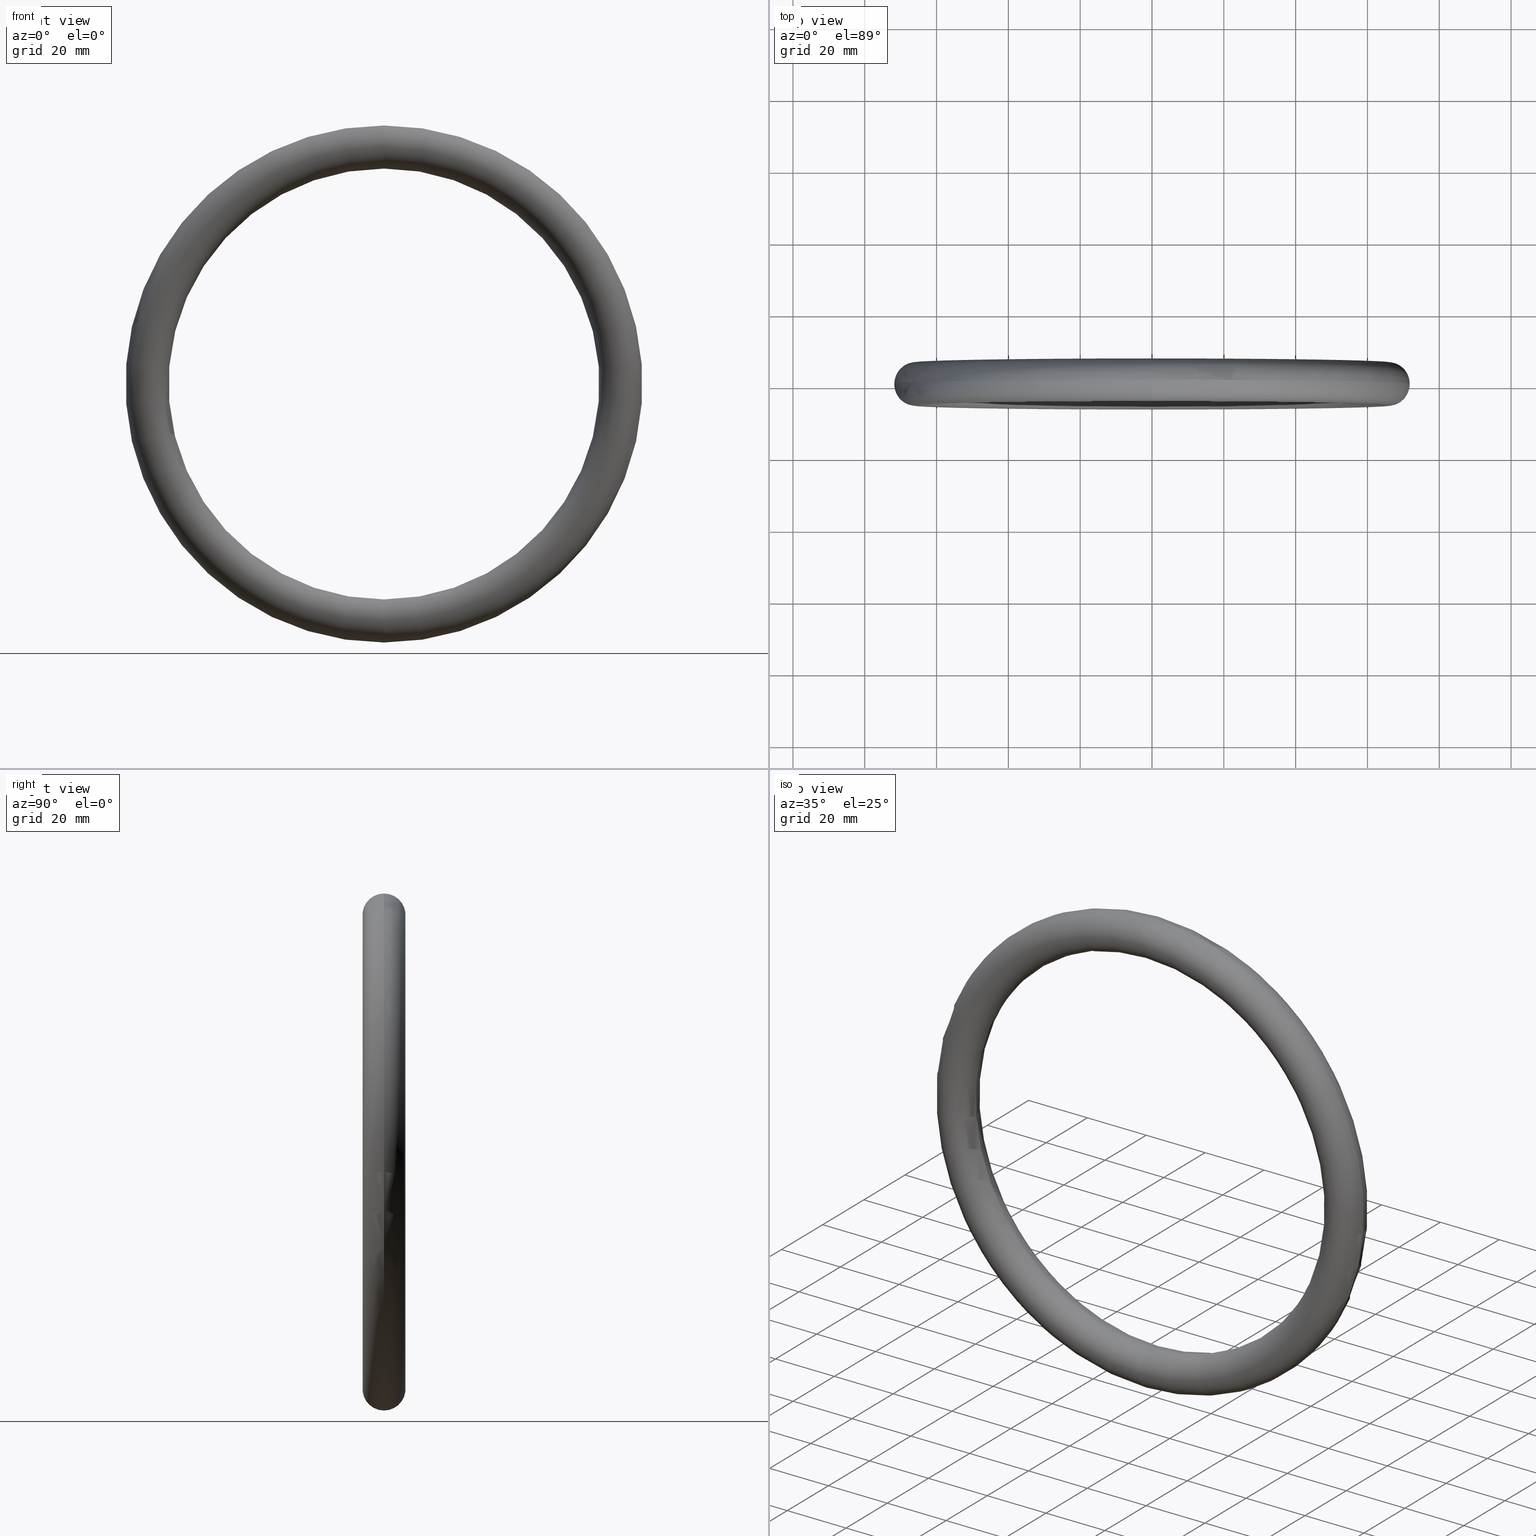
[diagram: canonical four-view strip — front | top / right | iso, engineering-drawing reading convention]
A machine part, canonical four-view strip (front | top / right | iso — engineering-drawing reading convention). The complete STEP part file that produces these views, byte-faithful:
ISO-10303-21;
HEADER;
FILE_DESCRIPTION (( 'STEP AP203' ),
    '1' );
FILE_NAME ('50382-240.step',
    '2021-04-26T12:00:21',
    ( '' ),
    ( '' ),
    'SwSTEP 2.0',
    'SolidWorks 2018',
    '' );
FILE_SCHEMA (( 'CONFIG_CONTROL_DESIGN' ));
ENDSEC;

DATA;
#1 = DATE_AND_TIME ( #209, #52 ) ;
#2 = ORIENTED_EDGE ( 'NONE', *, *, #136, .T. ) ;
#3 = CC_DESIGN_PERSON_AND_ORGANIZATION_ASSIGNMENT ( #243, #16, ( #44 ) ) ;
#4 = EDGE_CURVE ( 'NONE', #25, #43, #204, .T. ) ;
#5 = DIRECTION ( 'NONE',  ( 0.000000000000000000, 0.000000000000000000, 1.000000000000000000 ) ) ;
#6 = CLOSED_SHELL ( 'NONE', ( #105, #60, #179, #159 ) ) ;
#7 = PERSON_AND_ORGANIZATION_ROLE ( 'creator' ) ;
#8 = APPROVAL_ROLE ( '' ) ;
#9 = PERSON_AND_ORGANIZATION_ROLE ( 'creator' ) ;
#10 = PRODUCT_DEFINITION ( 'UNKNOWN', '', #28, #257 ) ;
#11 = APPROVAL_DATE_TIME ( #196, #228 ) ;
#12 = CIRCLE ( 'NONE', #49, 59.99999999999998579 ) ;
#13 = APPROVAL_ROLE ( '' ) ;
#14 = CARTESIAN_POINT ( 'NONE',  ( 0.000000000000000000, 0.000000000000000000, 0.000000000000000000 ) ) ;
#15 = AXIS2_PLACEMENT_3D ( 'NONE', #102, #131, #232 ) ;
#16 = PERSON_AND_ORGANIZATION_ROLE ( 'creator' ) ;
#17 = DATE_TIME_ROLE ( 'classification_date' ) ;
#18 = LOCAL_TIME ( 14, 0, 21.00000000000000000, #91 ) ;
#19 = APPLICATION_PROTOCOL_DEFINITION ( 'international standard', 'config_control_design', 1994, #81 ) ;
#20 = PRODUCT_RELATED_PRODUCT_CATEGORY ( 'detail', '', ( #101 ) ) ;
#21 = ORIENTED_EDGE ( 'NONE', *, *, #90, .T. ) ;
#22 = CALENDAR_DATE ( 2021, 26, 4 ) ;
#23 = SHAPE_DEFINITION_REPRESENTATION ( #184, #231 ) ;
#24 = MANIFOLD_SOLID_BREP ( 'Austragung1', #6 ) ;
#25 = VERTEX_POINT ( 'NONE', #79 ) ;
#26 = LOCAL_TIME ( 14, 0, 21.00000000000000000, #126 ) ;
#27 = CALENDAR_DATE ( 2021, 26, 4 ) ;
#28 = PRODUCT_DEFINITION_FORMATION_WITH_SPECIFIED_SOURCE ( 'ANY', '', #101, .NOT_KNOWN. ) ;
#29 = DIRECTION ( 'NONE',  ( 0.000000000000000000, 0.000000000000000000, -1.000000000000000000 ) ) ;
#30 = AXIS2_PLACEMENT_3D ( 'NONE', #233, #185, #45 ) ;
#31 = DIRECTION ( 'NONE',  ( 1.000000000000000000, 0.000000000000000000, 0.000000000000000000 ) ) ;
#32 = APPLICATION_CONTEXT ( 'configuration controlled 3d designs of mechanical parts and assemblies' ) ;
#33 = AXIS2_PLACEMENT_3D ( 'NONE', #242, #164, #29 ) ;
#34 = COORDINATED_UNIVERSAL_TIME_OFFSET ( 1, 0, .AHEAD. ) ;
#35 = EDGE_CURVE ( 'NONE', #142, #223, #210, .T. ) ;
#36 = DIRECTION ( 'NONE',  ( -1.224646799147351975E-16, 0.000000000000000000, -1.000000000000000000 ) ) ;
#37 = CC_DESIGN_PERSON_AND_ORGANIZATION_ASSIGNMENT ( #69, #266, ( #152 ) ) ;
#38 = AXIS2_PLACEMENT_3D ( 'NONE', #130, #96, #80 ) ;
#39 = LOCAL_TIME ( 14, 0, 21.00000000000000000, #191 ) ;
#40 = COORDINATED_UNIVERSAL_TIME_OFFSET ( 1, 0, .AHEAD. ) ;
#41 = CC_DESIGN_DATE_AND_TIME_ASSIGNMENT ( #88, #250, ( #152 ) ) ;
#42 = AXIS2_PLACEMENT_3D ( 'NONE', #53, #247, #121 ) ;
#43 = VERTEX_POINT ( 'NONE', #100 ) ;
#44 = PRODUCT_DEFINITION_FORMATION_WITH_SPECIFIED_SOURCE ( 'ANY', '', #125, .NOT_KNOWN. ) ;
#45 = DIRECTION ( 'NONE',  ( 0.000000000000000000, 0.000000000000000000, 1.000000000000000000 ) ) ;
#46 = CC_DESIGN_PERSON_AND_ORGANIZATION_ASSIGNMENT ( #87, #268, ( #44 ) ) ;
#47 = DIRECTION ( 'NONE',  ( 1.000000000000000000, 0.000000000000000000, 0.000000000000000000 ) ) ;
#48 =( NAMED_UNIT ( * ) PLANE_ANGLE_UNIT ( ) SI_UNIT ( $, .RADIAN. ) );
#49 = AXIS2_PLACEMENT_3D ( 'NONE', #89, #202, #203 ) ;
#50 = APPLICATION_CONTEXT ( 'configuration controlled 3d designs of mechanical parts and assemblies' ) ;
#51 = DATE_AND_TIME ( #22, #269 ) ;
#52 = LOCAL_TIME ( 14, 0, 21.00000000000000000, #215 ) ;
#53 = CARTESIAN_POINT ( 'NONE',  ( 0.000000000000000000, 0.000000000000000000, 0.000000000000000000 ) ) ;
#54 = UNCERTAINTY_MEASURE_WITH_UNIT (LENGTH_MEASURE( 1.000000000000000082E-05 ), #119, 'distance_accuracy_value', 'NONE');
#55 = APPROVAL ( #174, 'UNSPECIFIED' ) ;
#56 = PERSON_AND_ORGANIZATION ( #172, #177 ) ;
#57 = APPLICATION_PROTOCOL_DEFINITION ( 'international standard', 'config_control_design', 1994, #32 ) ;
#58 = CIRCLE ( 'NONE', #30, 6.000000000000005329 ) ;
#59 = APPROVAL_STATUS ( 'not_yet_approved' ) ;
#60 = ADVANCED_FACE ( 'NONE', ( #140 ), #183, .T. ) ;
#61 = CALENDAR_DATE ( 2021, 26, 4 ) ;
#62 = EDGE_LOOP ( 'NONE', ( #199, #137, #118, #71 ) ) ;
#63 = AXIS2_PLACEMENT_3D ( 'NONE', #200, #112, #216 ) ;
#64 = APPROVAL_PERSON_ORGANIZATION ( #158, #228, #97 ) ;
#65 = FACE_OUTER_BOUND ( 'NONE', #114, .T. ) ;
#66 = ORIENTED_EDGE ( 'NONE', *, *, #35, .T. ) ;
#67 = AXIS2_PLACEMENT_3D ( 'NONE', #222, #5, #31 ) ;
#68 = FACE_OUTER_BOUND ( 'NONE', #62, .T. ) ;
#69 = PERSON_AND_ORGANIZATION ( #172, #177 ) ;
#70 = CC_DESIGN_PERSON_AND_ORGANIZATION_ASSIGNMENT ( #270, #260, ( #101 ) ) ;
#71 = ORIENTED_EDGE ( 'NONE', *, *, #146, .T. ) ;
#72 = AXIS2_PLACEMENT_3D ( 'NONE', #264, #261, #147 ) ;
#73 = APPROVAL_PERSON_ORGANIZATION ( #94, #75, #13 ) ;
#74 = EDGE_LOOP ( 'NONE', ( #145, #123, #2, #237 ) ) ;
#75 = APPROVAL ( #173, 'UNSPECIFIED' ) ;
#76 = DESIGN_CONTEXT ( 'detailed design', #81, 'design' ) ;
#77 = APPROVAL_ROLE ( '' ) ;
#78 = DATE_AND_TIME ( #186, #144 ) ;
#79 = CARTESIAN_POINT ( 'NONE',  ( 8.817456953860941711E-15, 0.000000000000000000, 72.00000000000000000 ) ) ;
#80 = DIRECTION ( 'NONE',  ( 0.000000000000000000, 0.000000000000000000, -1.000000000000000000 ) ) ;
#81 = APPLICATION_CONTEXT ( 'configuration controlled 3d designs of mechanical parts and assemblies' ) ;
#82 = SECURITY_CLASSIFICATION ( '', '', #176 ) ;
#83 = CALENDAR_DATE ( 2021, 26, 4 ) ;
#84 = APPROVAL_PERSON_ORGANIZATION ( #56, #104, #8 ) ;
#85 = CC_DESIGN_APPROVAL ( #143, ( #10 ) ) ;
#86 =( GEOMETRIC_REPRESENTATION_CONTEXT ( 3 ) GLOBAL_UNCERTAINTY_ASSIGNED_CONTEXT ( ( #54 ) ) GLOBAL_UNIT_ASSIGNED_CONTEXT ( ( #119, #48, #120 ) ) REPRESENTATION_CONTEXT ( 'NONE', 'WORKASPACE' ) );
#87 = PERSON_AND_ORGANIZATION ( #172, #177 ) ;
#88 = DATE_AND_TIME ( #207, #258 ) ;
#89 = CARTESIAN_POINT ( 'NONE',  ( 0.000000000000000000, 7.347880794884122694E-16, 0.000000000000000000 ) ) ;
#90 = EDGE_CURVE ( 'NONE', #142, #25, #155, .T. ) ;
#91 = COORDINATED_UNIVERSAL_TIME_OFFSET ( 1, 0, .AHEAD. ) ;
#92 = MECHANICAL_CONTEXT ( 'NONE', #248, 'mechanical' ) ;
#93 = AXIS2_PLACEMENT_3D ( 'NONE', #221, #168, #47 ) ;
#94 = PERSON_AND_ORGANIZATION ( #172, #177 ) ;
#95 = PERSON_AND_ORGANIZATION ( #172, #177 ) ;
#96 = DIRECTION ( 'NONE',  ( -0.000000000000000000, -1.000000000000000000, -0.000000000000000000 ) ) ;
#97 = APPROVAL_ROLE ( '' ) ;
#98 = PRODUCT_DEFINITION_SHAPE ( 'NONE', 'NONE',  #10 ) ;
#99 = CC_DESIGN_APPROVAL ( #55, ( #212 ) ) ;
#100 = CARTESIAN_POINT ( 'NONE',  ( 7.347880794884118356E-15, 0.000000000000000000, 59.99999999999998579 ) ) ;
#101 = PRODUCT ( '50382-240', '50382-240', '', ( #92 ) ) ;
#102 = CARTESIAN_POINT ( 'NONE',  ( 0.000000000000000000, 0.000000000000000000, 0.000000000000000000 ) ) ;
#103 = PERSON_AND_ORGANIZATION_ROLE ( 'classification_officer' ) ;
#104 = APPROVAL ( #124, 'UNSPECIFIED' ) ;
#105 = ADVANCED_FACE ( 'NONE', ( #65 ), #253, .T. ) ;
#106 = CALENDAR_DATE ( 2021, 26, 4 ) ;
#107 = LOCAL_TIME ( 14, 0, 21.00000000000000000, #167 ) ;
#108 = EDGE_CURVE ( 'NONE', #223, #142, #58, .T. ) ;
#109 = DIRECTION ( 'NONE',  ( 0.000000000000000000, 0.000000000000000000, -1.000000000000000000 ) ) ;
#110 = CC_DESIGN_DATE_AND_TIME_ASSIGNMENT ( #197, #17, ( #82 ) ) ;
#111 = DATE_AND_TIME ( #61, #26 ) ;
#112 = DIRECTION ( 'NONE',  ( -0.000000000000000000, -1.000000000000000000, -0.000000000000000000 ) ) ;
#113 = PERSON_AND_ORGANIZATION ( #172, #177 ) ;
#114 = EDGE_LOOP ( 'NONE', ( #240, #178, #66, #182 ) ) ;
#115 = PERSON_AND_ORGANIZATION ( #172, #177 ) ;
#116 = TOROIDAL_SURFACE ( 'NONE', #72, 65.99999999999998579, 6.000000000000002665 ) ;
#117 = CARTESIAN_POINT ( 'NONE',  ( 8.082668874372530822E-15, 0.000000000000000000, 65.99999999999998579 ) ) ;
#118 = ORIENTED_EDGE ( 'NONE', *, *, #141, .T. ) ;
#119 =( LENGTH_UNIT ( ) NAMED_UNIT ( * ) SI_UNIT ( .MILLI., .METRE. ) );
#120 =( NAMED_UNIT ( * ) SI_UNIT ( $, .STERADIAN. ) SOLID_ANGLE_UNIT ( ) );
#121 = DIRECTION ( 'NONE',  ( 0.000000000000000000, 0.000000000000000000, -1.000000000000000000 ) ) ;
#122 = CC_DESIGN_SECURITY_CLASSIFICATION ( #82, ( #44 ) ) ;
#123 = ORIENTED_EDGE ( 'NONE', *, *, #146, .F. ) ;
#124 = APPROVAL_STATUS ( 'not_yet_approved' ) ;
#125 = PRODUCT ( '50382-240', '50382-240', '', ( #208 ) ) ;
#126 = COORDINATED_UNIVERSAL_TIME_OFFSET ( 1, 0, .AHEAD. ) ;
#127 = COORDINATED_UNIVERSAL_TIME_OFFSET ( 1, 0, .AHEAD. ) ;
#128 = CIRCLE ( 'NONE', #153, 6.000000000000005329 ) ;
#129 = EDGE_LOOP ( 'NONE', ( #246, #21, #227, #244 ) ) ;
#130 = CARTESIAN_POINT ( 'NONE',  ( 0.000000000000000000, 0.000000000000000000, 0.000000000000000000 ) ) ;
#131 = DIRECTION ( 'NONE',  ( -0.000000000000000000, -1.000000000000000000, -0.000000000000000000 ) ) ;
#132 = PERSON_AND_ORGANIZATION_ROLE ( 'design_owner' ) ;
#133 = CC_DESIGN_APPROVAL ( #75, ( #82 ) ) ;
#134 = DATE_TIME_ROLE ( 'creation_date' ) ;
#135 = FACE_OUTER_BOUND ( 'NONE', #74, .T. ) ;
#136 = EDGE_CURVE ( 'NONE', #43, #223, #239, .T. ) ;
#137 = ORIENTED_EDGE ( 'NONE', *, *, #108, .F. ) ;
#138 = DATE_AND_TIME ( #83, #39 ) ;
#139 = APPROVAL_PERSON_ORGANIZATION ( #192, #55, #77 ) ;
#140 = FACE_OUTER_BOUND ( 'NONE', #129, .T. ) ;
#141 = EDGE_CURVE ( 'NONE', #223, #43, #12, .T. ) ;
#142 = VERTEX_POINT ( 'NONE', #251 ) ;
#143 = APPROVAL ( #205, 'UNSPECIFIED' ) ;
#144 = LOCAL_TIME ( 14, 0, 21.00000000000000000, #127 ) ;
#145 = ORIENTED_EDGE ( 'NONE', *, *, #262, .F. ) ;
#146 = EDGE_CURVE ( 'NONE', #43, #25, #128, .T. ) ;
#147 = DIRECTION ( 'NONE',  ( 0.000000000000000000, 0.000000000000000000, -1.000000000000000000 ) ) ;
#148 = APPLICATION_PROTOCOL_DEFINITION ( 'international standard', 'config_control_design', 1994, #248 ) ;
#149 = APPROVAL_ROLE ( '' ) ;
#150 = DIRECTION ( 'NONE',  ( 1.000000000000000000, 0.000000000000000000, -1.224646799147353207E-16 ) ) ;
#151 = APPROVAL_STATUS ( 'not_yet_approved' ) ;
#152 = SECURITY_CLASSIFICATION ( '', '', #190 ) ;
#153 = AXIS2_PLACEMENT_3D ( 'NONE', #117, #241, #187 ) ;
#154 = APPROVAL_PERSON_ORGANIZATION ( #175, #143, #149 ) ;
#155 = CIRCLE ( 'NONE', #15, 72.00000000000000000 ) ;
#156 = CC_DESIGN_APPROVAL ( #228, ( #152 ) ) ;
#157 = PERSON_AND_ORGANIZATION ( #172, #177 ) ;
#158 = PERSON_AND_ORGANIZATION ( #172, #177 ) ;
#159 = ADVANCED_FACE ( 'NONE', ( #135 ), #189, .T. ) ;
#160 = AXIS2_PLACEMENT_3D ( 'NONE', #265, #150, #36 ) ;
#161 = CIRCLE ( 'NONE', #42, 72.00000000000000000 ) ;
#162 = PRODUCT_RELATED_PRODUCT_CATEGORY ( 'detail', '', ( #125 ) ) ;
#163 = APPROVAL_DATE_TIME ( #249, #104 ) ;
#164 = DIRECTION ( 'NONE',  ( -0.000000000000000000, -1.000000000000000000, -0.000000000000000000 ) ) ;
#165 = CC_DESIGN_DATE_AND_TIME_ASSIGNMENT ( #111, #134, ( #212 ) ) ;
#166 = CC_DESIGN_PERSON_AND_ORGANIZATION_ASSIGNMENT ( #95, #169, ( #28 ) ) ;
#167 = COORDINATED_UNIVERSAL_TIME_OFFSET ( 1, 0, .AHEAD. ) ;
#168 = DIRECTION ( 'NONE',  ( 0.000000000000000000, 0.000000000000000000, 1.000000000000000000 ) ) ;
#169 = PERSON_AND_ORGANIZATION_ROLE ( 'design_supplier' ) ;
#170 = CC_DESIGN_PERSON_AND_ORGANIZATION_ASSIGNMENT ( #218, #7, ( #10 ) ) ;
#171 = DIRECTION ( 'NONE',  ( 0.000000000000000000, 0.000000000000000000, 1.000000000000000000 ) ) ;
#172 = PERSON ( 'UNSPECIFIED', 'UNSPECIFIED', 'UNSPECIFIED', ('UNSPECIFIED'), ('UNSPECIFIED'), ('UNSPECIFIED') ) ;
#173 = APPROVAL_STATUS ( 'not_yet_approved' ) ;
#174 = APPROVAL_STATUS ( 'not_yet_approved' ) ;
#175 = PERSON_AND_ORGANIZATION ( #172, #177 ) ;
#176 = SECURITY_CLASSIFICATION_LEVEL ( 'unclassified' ) ;
#177 = ORGANIZATION ( 'UNSPECIFIED', 'UNSPECIFIED', '' ) ;
#178 = ORIENTED_EDGE ( 'NONE', *, *, #262, .T. ) ;
#179 = ADVANCED_FACE ( 'NONE', ( #68 ), #116, .T. ) ;
#180 = APPROVAL_DATE_TIME ( #1, #143 ) ;
#181 = CC_DESIGN_SECURITY_CLASSIFICATION ( #152, ( #28 ) ) ;
#182 = ORIENTED_EDGE ( 'NONE', *, *, #136, .F. ) ;
#183 = TOROIDAL_SURFACE ( 'NONE', #38, 65.99999999999998579, 6.000000000000002665 ) ;
#184 = PRODUCT_DEFINITION_SHAPE ( 'NONE', 'NONE',  #212 ) ;
#185 = DIRECTION ( 'NONE',  ( -1.000000000000000000, 0.000000000000000000, 0.000000000000000000 ) ) ;
#186 = CALENDAR_DATE ( 2021, 26, 4 ) ;
#187 = DIRECTION ( 'NONE',  ( -1.224646799147351975E-16, 0.000000000000000000, -1.000000000000000000 ) ) ;
#188 = APPLICATION_PROTOCOL_DEFINITION ( 'international standard', 'config_control_design', 1994, #50 ) ;
#189 = TOROIDAL_SURFACE ( 'NONE', #33, 65.99999999999998579, 6.000000000000002665 ) ;
#190 = SECURITY_CLASSIFICATION_LEVEL ( 'unclassified' ) ;
#191 = COORDINATED_UNIVERSAL_TIME_OFFSET ( 1, 0, .AHEAD. ) ;
#192 = PERSON_AND_ORGANIZATION ( #172, #177 ) ;
#193 = APPROVAL_DATE_TIME ( #138, #75 ) ;
#194 = CC_DESIGN_PERSON_AND_ORGANIZATION_ASSIGNMENT ( #230, #9, ( #212 ) ) ;
#195 = APPROVAL_DATE_TIME ( #217, #55 ) ;
#196 = DATE_AND_TIME ( #27, #255 ) ;
#197 = DATE_AND_TIME ( #235, #201 ) ;
#198 = CC_DESIGN_PERSON_AND_ORGANIZATION_ASSIGNMENT ( #236, #219, ( #28 ) ) ;
#199 = ORIENTED_EDGE ( 'NONE', *, *, #90, .F. ) ;
#200 = CARTESIAN_POINT ( 'NONE',  ( 0.000000000000000000, 7.347880794884122694E-16, 0.000000000000000000 ) ) ;
#201 = LOCAL_TIME ( 14, 0, 21.00000000000000000, #252 ) ;
#202 = DIRECTION ( 'NONE',  ( -0.000000000000000000, -1.000000000000000000, -0.000000000000000000 ) ) ;
#203 = DIRECTION ( 'NONE',  ( 0.000000000000000000, 0.000000000000000000, -1.000000000000000000 ) ) ;
#204 = CIRCLE ( 'NONE', #160, 6.000000000000005329 ) ;
#205 = APPROVAL_STATUS ( 'not_yet_approved' ) ;
#206 = DATE_TIME_ROLE ( 'creation_date' ) ;
#207 = CALENDAR_DATE ( 2021, 26, 4 ) ;
#208 = MECHANICAL_CONTEXT ( 'NONE', #32, 'mechanical' ) ;
#209 = CALENDAR_DATE ( 2021, 26, 4 ) ;
#210 = CIRCLE ( 'NONE', #259, 6.000000000000005329 ) ;
#211 = DIRECTION ( 'NONE',  ( -1.000000000000000000, 0.000000000000000000, 0.000000000000000000 ) ) ;
#212 = PRODUCT_DEFINITION ( 'UNKNOWN', '', #44, #76 ) ;
#213 = CALENDAR_DATE ( 2021, 26, 4 ) ;
#214 = CC_DESIGN_APPROVAL ( #104, ( #28 ) ) ;
#215 = COORDINATED_UNIVERSAL_TIME_OFFSET ( 1, 0, .AHEAD. ) ;
#216 = DIRECTION ( 'NONE',  ( 0.000000000000000000, 0.000000000000000000, -1.000000000000000000 ) ) ;
#217 = DATE_AND_TIME ( #106, #18 ) ;
#218 = PERSON_AND_ORGANIZATION ( #172, #177 ) ;
#219 = PERSON_AND_ORGANIZATION_ROLE ( 'creator' ) ;
#220 = CC_DESIGN_PERSON_AND_ORGANIZATION_ASSIGNMENT ( #157, #103, ( #82 ) ) ;
#221 = CARTESIAN_POINT ( 'NONE',  ( 0.000000000000000000, 0.000000000000000000, 0.000000000000000000 ) ) ;
#222 = CARTESIAN_POINT ( 'NONE',  ( 0.000000000000000000, 0.000000000000000000, 0.000000000000000000 ) ) ;
#223 = VERTEX_POINT ( 'NONE', #224 ) ;
#224 = CARTESIAN_POINT ( 'NONE',  ( 0.000000000000000000, 0.000000000000000000, -59.99999999999998579 ) ) ;
#225 = APPROVAL_ROLE ( '' ) ;
#226 = APPROVAL_DATE_TIME ( #51, #245 ) ;
#227 = ORIENTED_EDGE ( 'NONE', *, *, #4, .T. ) ;
#228 = APPROVAL ( #151, 'UNSPECIFIED' ) ;
#229 = DIRECTION ( 'NONE',  ( -0.000000000000000000, -1.000000000000000000, -0.000000000000000000 ) ) ;
#230 = PERSON_AND_ORGANIZATION ( #172, #177 ) ;
#231 = ADVANCED_BREP_SHAPE_REPRESENTATION ( '50382-240', ( #24, #93 ), #86 ) ;
#232 = DIRECTION ( 'NONE',  ( 0.000000000000000000, 0.000000000000000000, -1.000000000000000000 ) ) ;
#233 = CARTESIAN_POINT ( 'NONE',  ( 0.000000000000000000, 0.000000000000000000, -65.99999999999998579 ) ) ;
#234 = CC_DESIGN_DATE_AND_TIME_ASSIGNMENT ( #78, #206, ( #10 ) ) ;
#235 = CALENDAR_DATE ( 2021, 26, 4 ) ;
#236 = PERSON_AND_ORGANIZATION ( #172, #177 ) ;
#237 = ORIENTED_EDGE ( 'NONE', *, *, #108, .T. ) ;
#238 = CC_DESIGN_PERSON_AND_ORGANIZATION_ASSIGNMENT ( #113, #132, ( #125 ) ) ;
#239 = CIRCLE ( 'NONE', #63, 59.99999999999998579 ) ;
#240 = ORIENTED_EDGE ( 'NONE', *, *, #4, .F. ) ;
#241 = DIRECTION ( 'NONE',  ( 1.000000000000000000, 0.000000000000000000, -1.224646799147353207E-16 ) ) ;
#242 = CARTESIAN_POINT ( 'NONE',  ( 0.000000000000000000, 0.000000000000000000, 0.000000000000000000 ) ) ;
#243 = PERSON_AND_ORGANIZATION ( #172, #177 ) ;
#244 = ORIENTED_EDGE ( 'NONE', *, *, #141, .F. ) ;
#245 = APPROVAL ( #59, 'UNSPECIFIED' ) ;
#246 = ORIENTED_EDGE ( 'NONE', *, *, #35, .F. ) ;
#247 = DIRECTION ( 'NONE',  ( -0.000000000000000000, -1.000000000000000000, -0.000000000000000000 ) ) ;
#248 = APPLICATION_CONTEXT ( 'configuration controlled 3d designs of mechanical parts and assemblies' ) ;
#249 = DATE_AND_TIME ( #213, #107 ) ;
#250 = DATE_TIME_ROLE ( 'classification_date' ) ;
#251 = CARTESIAN_POINT ( 'NONE',  ( 0.000000000000000000, 0.000000000000000000, -72.00000000000000000 ) ) ;
#252 = COORDINATED_UNIVERSAL_TIME_OFFSET ( 1, 0, .AHEAD. ) ;
#253 = TOROIDAL_SURFACE ( 'NONE', #271, 65.99999999999998579, 6.000000000000002665 ) ;
#254 = APPROVAL_PERSON_ORGANIZATION ( #115, #245, #225 ) ;
#255 = LOCAL_TIME ( 14, 0, 21.00000000000000000, #34 ) ;
#256 = CC_DESIGN_APPROVAL ( #245, ( #44 ) ) ;
#257 = DESIGN_CONTEXT ( 'detailed design', #50, 'design' ) ;
#258 = LOCAL_TIME ( 14, 0, 21.00000000000000000, #40 ) ;
#259 = AXIS2_PLACEMENT_3D ( 'NONE', #267, #211, #171 ) ;
#260 = PERSON_AND_ORGANIZATION_ROLE ( 'design_owner' ) ;
#261 = DIRECTION ( 'NONE',  ( -0.000000000000000000, -1.000000000000000000, -0.000000000000000000 ) ) ;
#262 = EDGE_CURVE ( 'NONE', #25, #142, #161, .T. ) ;
#263 = COORDINATED_UNIVERSAL_TIME_OFFSET ( 1, 0, .AHEAD. ) ;
#264 = CARTESIAN_POINT ( 'NONE',  ( 0.000000000000000000, 0.000000000000000000, 0.000000000000000000 ) ) ;
#265 = CARTESIAN_POINT ( 'NONE',  ( 8.082668874372530822E-15, 0.000000000000000000, 65.99999999999998579 ) ) ;
#266 = PERSON_AND_ORGANIZATION_ROLE ( 'classification_officer' ) ;
#267 = CARTESIAN_POINT ( 'NONE',  ( 0.000000000000000000, 0.000000000000000000, -65.99999999999998579 ) ) ;
#268 = PERSON_AND_ORGANIZATION_ROLE ( 'design_supplier' ) ;
#269 = LOCAL_TIME ( 14, 0, 21.00000000000000000, #263 ) ;
#270 = PERSON_AND_ORGANIZATION ( #172, #177 ) ;
#271 = AXIS2_PLACEMENT_3D ( 'NONE', #14, #229, #109 ) ;
ENDSEC;
END-ISO-10303-21;
